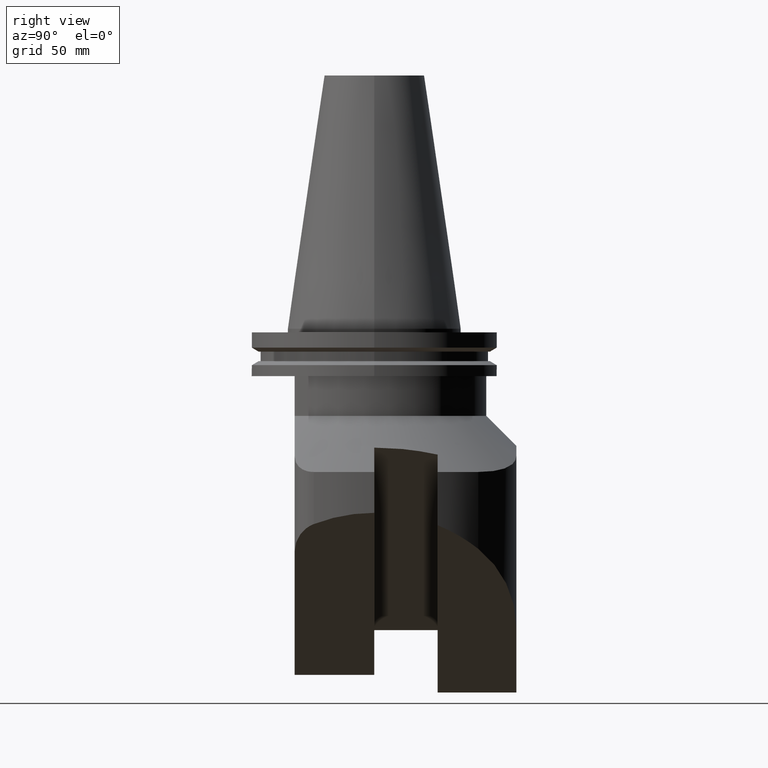
[diagram: clean part render]
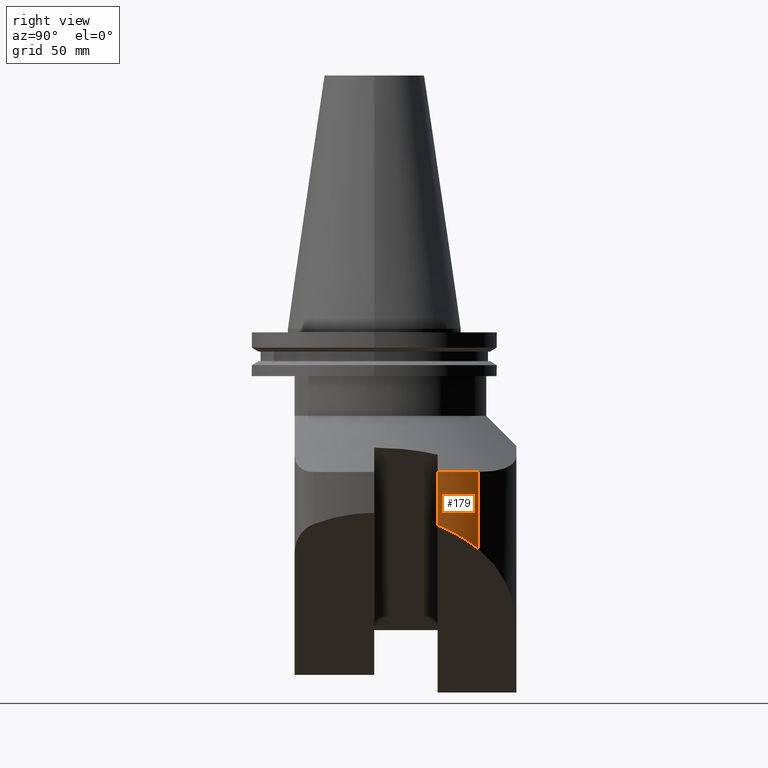
[diagram: same view with one face highlighted and labeled with its STEP entity id]
A machine part, right view. The second image highlights one B-rep face of the part: STEP entity #179.
In plain terms, the highlighted cylindrical surface (partial cylindrical patch) has radius 67.5 mm, axis along (-0, -0, -1).
Its self-contained STEP definition (entity closure, byte-faithful):
#151=EDGE_CURVE('Unnamed[1]',#412,#413,#414,.T.);
#179=ADVANCED_FACE('Unnamed[1]',(#454),#455,.T.);
#181=EDGE_CURVE('Unnamed[1]',#457,#412,#458,.T.);
#200=EDGE_CURVE('Unnamed[1]',#485,#457,#486,.T.);
#212=EDGE_CURVE('Unnamed[1]',#413,#485,#504,.T.);
#412=VERTEX_POINT('',#746);
#413=VERTEX_POINT('',#747);
#414=LINE('',#748,#749);
#454=FACE_OUTER_BOUND('',#813,.T.);
#455=CYLINDRICAL_SURFACE('',#814,67.5);
#457=VERTEX_POINT('',#817);
#458=CIRCLE('',#818,67.5);
#485=VERTEX_POINT('',#864);
#486=LINE('',#865,#866);
#504=ELLIPSE('',#917,95.4594154601839,67.5);
#746=CARTESIAN_POINT('',(62.5387080135177,25.3999999999995,-57.5000000000014));
#747=CARTESIAN_POINT('',(62.5387080135177,25.3999999999995,-78.8612919864821));
#748=CARTESIAN_POINT('',(62.5387080135177,25.3999999999995,-72.9213140603238));
#749=VECTOR('',#1294,1.0);
#813=EDGE_LOOP('',(#1333,#1334,#1335,#1336));
#814=AXIS2_PLACEMENT_3D('',#1337,#1338,#1339);
#817=CARTESIAN_POINT('',(53.0573718793535,41.7272727272726,-57.5000000000029));
#818=AXIS2_PLACEMENT_3D('',#1340,#1341,#1342);
#864=CARTESIAN_POINT('',(53.0573718793564,41.7272727272727,-88.3426281206434));
#865=CARTESIAN_POINT('',(53.0573718793564,41.7272727272726,-306.209870642012));
#866=VECTOR('',#1374,1.0);
#917=AXIS2_PLACEMENT_3D('',#1382,#1383,#1384);
#1294=DIRECTION('',(-1.04228178922544E-016,-2.22044604925031E-016,-1.0));
#1333=ORIENTED_EDGE('',*,*,#151,.T.);
#1334=ORIENTED_EDGE('',*,*,#212,.T.);
#1335=ORIENTED_EDGE('',*,*,#200,.T.);
#1336=ORIENTED_EDGE('',*,*,#181,.T.);
#1337=CARTESIAN_POINT('',(-3.40905973809111E-014,-2.25930385511222E-014,-101.750000000001));
#1338=DIRECTION('',(-1.04228178922544E-016,-2.22044604925031E-016,-1.0));
#1339=DIRECTION('',(1.0,-4.44089209850063E-016,-1.04228178922544E-016));
#1340=CARTESIAN_POINT('',(-2.94785004635885E-014,-1.27675647831896E-014,-57.5000000000014));
#1341=DIRECTION('',(-1.04228178922544E-016,-2.22044604925031E-016,-1.0));
#1342=DIRECTION('',(1.0,-4.44089209850063E-016,-1.04228178922544E-016));
#1374=DIRECTION('',(-1.22464679914735E-016,2.22044604925031E-016,1.0));
#1382=CARTESIAN_POINT('',(-3.82232446751898E-014,-3.13971071363993E-014,-141.4));
#1383=DIRECTION('',(-0.707106781186547,4.71027737605133E-016,0.707106781186547));
#1384=DIRECTION('',(0.707106781186548,-1.57009245868378E-016,0.707106781186548));